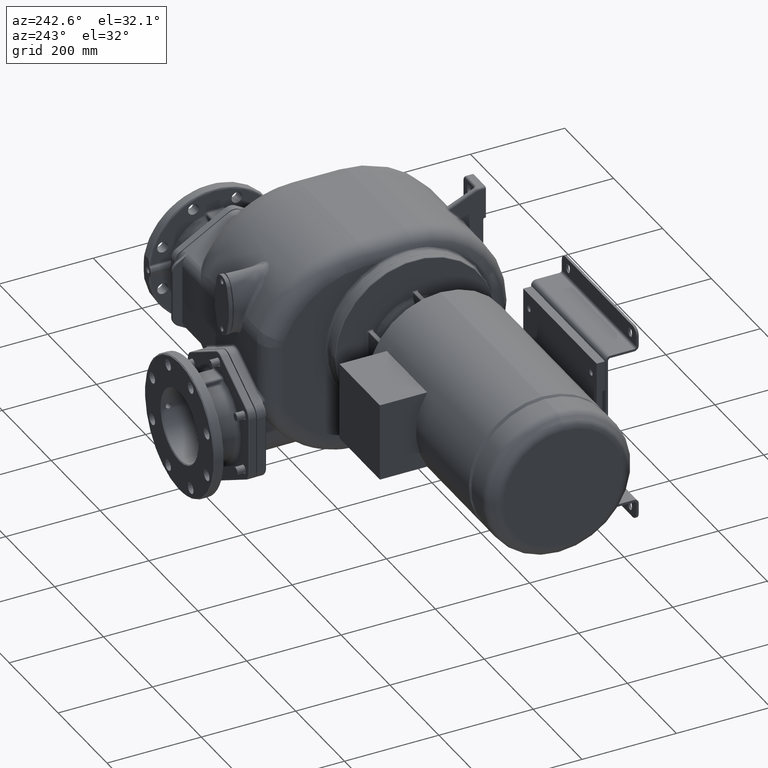
[diagram: clean part render]
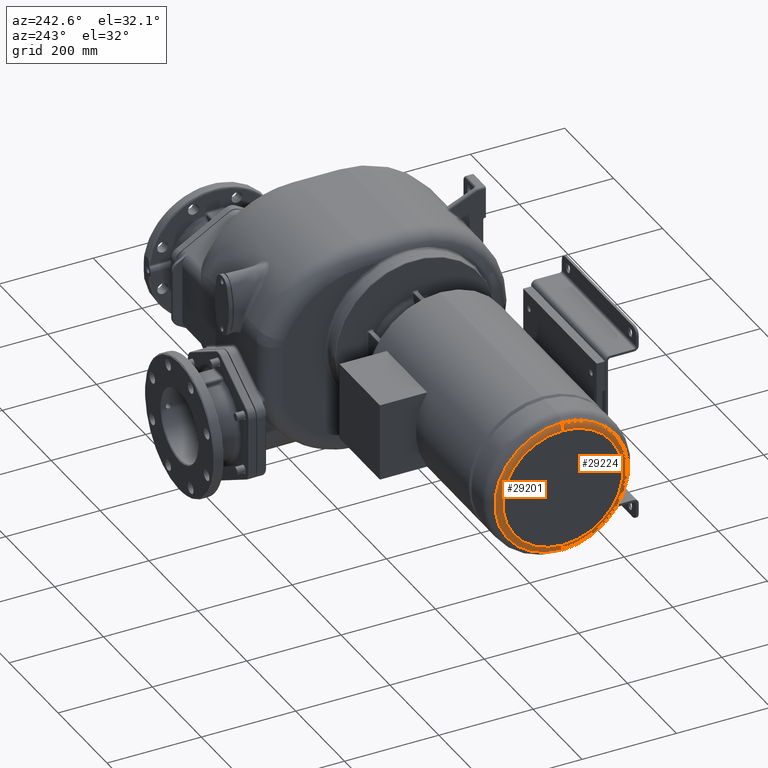
[diagram: same view with one multi-face feature highlighted, each face labeled with its STEP entity id]
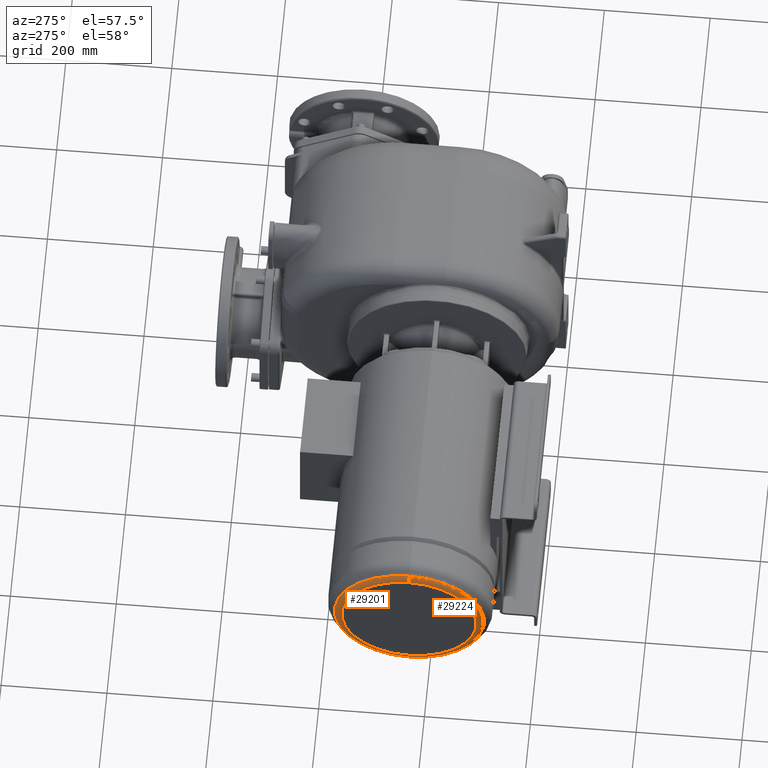
[diagram: same view with one multi-face feature highlighted, each face labeled with its STEP entity id]
A machine part, auxiliary view. The highlighted faces form ONE feature: a constant-radius fillet chain: 2 tangent blend faces with common blend radius 20 mm. The faces share edges in the B-rep.
A second angle (auxiliary view) of the same feature is appended — it is thin or edge-on in the first view.
Their STEP definitions:
[1] entity #29224 (Torus):
#11190=CARTESIAN_POINT('',(-7.876421374491E2,2.3E2,4.263258414561E-14));
#11191=DIRECTION('',(-1.E0,0.E0,0.E0));
#11192=DIRECTION('',(0.E0,1.824183733377E-10,-1.E0));
#11193=AXIS2_PLACEMENT_3D('',#11190,#11191,#11192);
#11209=CARTESIAN_POINT('',(-7.735E2,2.299999997711E2,1.272157652441E2));
#11210=DIRECTION('',(0.E0,1.E0,1.799578583372E-9));
#11211=DIRECTION('',(-1.E0,0.E0,0.E0));
#11212=AXIS2_PLACEMENT_3D('',#11209,#11210,#11211);
#11214=CARTESIAN_POINT('',(-7.935E2,2.3E2,4.263258414561E-14));
#11215=DIRECTION('',(-1.E0,0.E0,0.E0));
#11216=DIRECTION('',(0.E0,1.799577240178E-9,-1.E0));
#11217=AXIS2_PLACEMENT_3D('',#11214,#11215,#11216);
#11224=CARTESIAN_POINT('',(-7.735E2,2.300000002289E2,-1.272157652441E2));
#11225=DIRECTION('',(0.E0,-1.E0,-1.799578692660E-9));
#11226=DIRECTION('',(-1.E0,0.E0,0.E0));
#11227=AXIS2_PLACEMENT_3D('',#11224,#11225,#11226);
#17216=CARTESIAN_POINT('',(-7.935E2,2.300000002289E2,-1.272157652441E2));
#17217=CARTESIAN_POINT('',(-7.935E2,2.299999997711E2,1.272157652441E2));
#17218=VERTEX_POINT('',#17216);
#17219=VERTEX_POINT('',#17217);
#17220=CARTESIAN_POINT('',(-7.876421374491E2,2.300000000258E2,
-1.413578990424E2));
#17221=CARTESIAN_POINT('',(-7.876421374491E2,2.299999999742E2,
1.413578990424E2));
#17222=VERTEX_POINT('',#17220);
#17223=VERTEX_POINT('',#17221);
#29213=CARTESIAN_POINT('',(-7.735E2,2.3E2,4.263258414561E-14));
#29214=DIRECTION('',(1.E0,0.E0,0.E0));
#29215=DIRECTION('',(0.E0,1.023548266735E-2,-9.999476160752E-1));
#29216=AXIS2_PLACEMENT_3D('',#29213,#29214,#29215);
#29217=TOROIDAL_SURFACE('',#29216,1.272157652441E2,2.E1);
#29218=ORIENTED_EDGE('',*,*,#29207,.T.);
#29219=ORIENTED_EDGE('',*,*,#29197,.T.);
#29220=ORIENTED_EDGE('',*,*,#29167,.F.);
#29221=ORIENTED_EDGE('',*,*,#29194,.F.);
#29222=EDGE_LOOP('',(#29218,#29219,#29220,#29221));
#29223=FACE_OUTER_BOUND('',#29222,.F.);
#29224=ADVANCED_FACE('',(#29223),#29217,.T.);
#11194=CIRCLE('',#11193,1.413578990424E2);
#11213=CIRCLE('',#11212,2.E1);
#11218=CIRCLE('',#11217,1.272157652441E2);
#11228=CIRCLE('',#11227,2.E1);
#29167=EDGE_CURVE('',#17222,#17223,#11194,.T.);
#29194=EDGE_CURVE('',#17218,#17222,#11228,.T.);
#29197=EDGE_CURVE('',#17219,#17223,#11213,.T.);
#29207=EDGE_CURVE('',#17218,#17219,#11218,.T.);
[2] entity #29201 (Torus):
#11204=CARTESIAN_POINT('',(-7.876421374491E2,2.3E2,1.421087471520E-14));
#11205=DIRECTION('',(-1.E0,0.E0,0.E0));
#11206=DIRECTION('',(0.E0,-1.824183733377E-10,1.E0));
#11207=AXIS2_PLACEMENT_3D('',#11204,#11205,#11206);
#11209=CARTESIAN_POINT('',(-7.735E2,2.299999997711E2,1.272157652441E2));
#11210=DIRECTION('',(0.E0,1.E0,1.799578583372E-9));
#11211=DIRECTION('',(-1.E0,0.E0,0.E0));
#11212=AXIS2_PLACEMENT_3D('',#11209,#11210,#11211);
#11219=CARTESIAN_POINT('',(-7.935E2,2.3E2,1.421087471520E-14));
#11220=DIRECTION('',(-1.E0,0.E0,0.E0));
#11221=DIRECTION('',(0.E0,-1.799581485033E-9,1.E0));
#11222=AXIS2_PLACEMENT_3D('',#11219,#11220,#11221);
#11224=CARTESIAN_POINT('',(-7.735E2,2.300000002289E2,-1.272157652441E2));
#11225=DIRECTION('',(0.E0,-1.E0,-1.799578692660E-9));
#11226=DIRECTION('',(-1.E0,0.E0,0.E0));
#11227=AXIS2_PLACEMENT_3D('',#11224,#11225,#11226);
#17216=CARTESIAN_POINT('',(-7.935E2,2.300000002289E2,-1.272157652441E2));
#17217=CARTESIAN_POINT('',(-7.935E2,2.299999997711E2,1.272157652441E2));
#17218=VERTEX_POINT('',#17216);
#17219=VERTEX_POINT('',#17217);
#17220=CARTESIAN_POINT('',(-7.876421374491E2,2.300000000258E2,
-1.413578990424E2));
#17221=CARTESIAN_POINT('',(-7.876421374491E2,2.299999999742E2,
1.413578990424E2));
#17222=VERTEX_POINT('',#17220);
#17223=VERTEX_POINT('',#17221);
#29187=CARTESIAN_POINT('',(-7.735E2,2.3E2,1.421087471520E-14));
#29188=DIRECTION('',(1.E0,0.E0,0.E0));
#29189=DIRECTION('',(0.E0,-1.023548266735E-2,9.999476160752E-1));
#29190=AXIS2_PLACEMENT_3D('',#29187,#29188,#29189);
#29191=TOROIDAL_SURFACE('',#29190,1.272157652441E2,2.E1);
#29193=ORIENTED_EDGE('',*,*,#29192,.T.);
#29195=ORIENTED_EDGE('',*,*,#29194,.T.);
#29196=ORIENTED_EDGE('',*,*,#29181,.F.);
#29198=ORIENTED_EDGE('',*,*,#29197,.F.);
#29199=EDGE_LOOP('',(#29193,#29195,#29196,#29198));
#29200=FACE_OUTER_BOUND('',#29199,.F.);
#29201=ADVANCED_FACE('',(#29200),#29191,.T.);
#11208=CIRCLE('',#11207,1.413578990424E2);
#11213=CIRCLE('',#11212,2.E1);
#11223=CIRCLE('',#11222,1.272157652441E2);
#11228=CIRCLE('',#11227,2.E1);
#29181=EDGE_CURVE('',#17223,#17222,#11208,.T.);
#29192=EDGE_CURVE('',#17219,#17218,#11223,.T.);
#29194=EDGE_CURVE('',#17218,#17222,#11228,.T.);
#29197=EDGE_CURVE('',#17219,#17223,#11213,.T.);